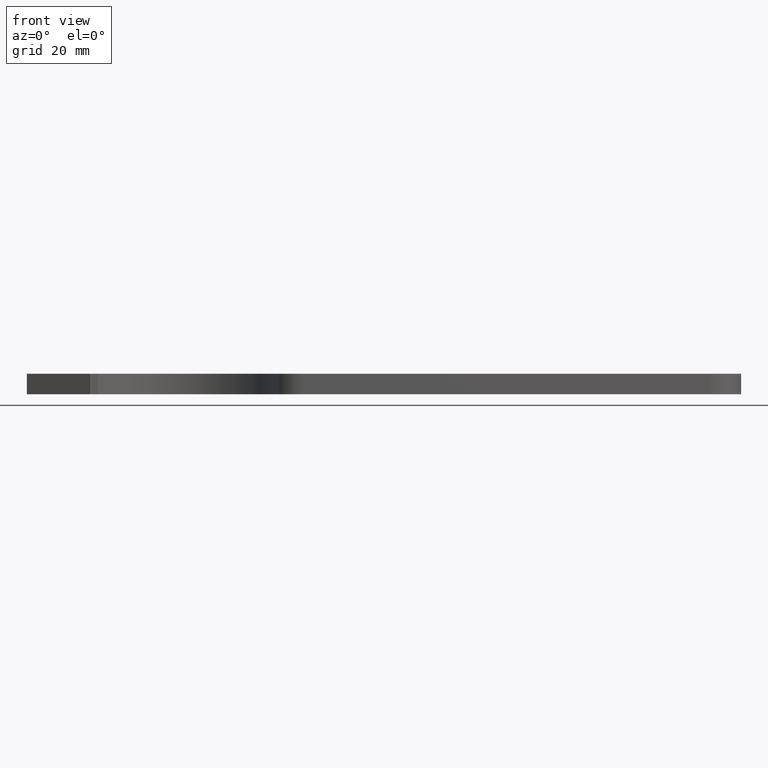
[diagram: clean part render]
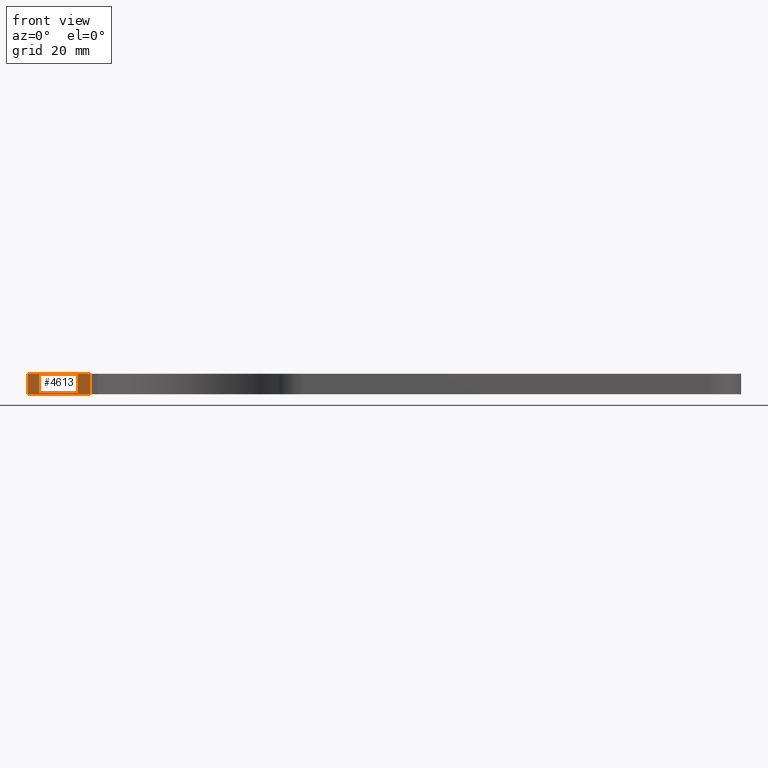
[diagram: same view with one face highlighted and labeled with its STEP entity id]
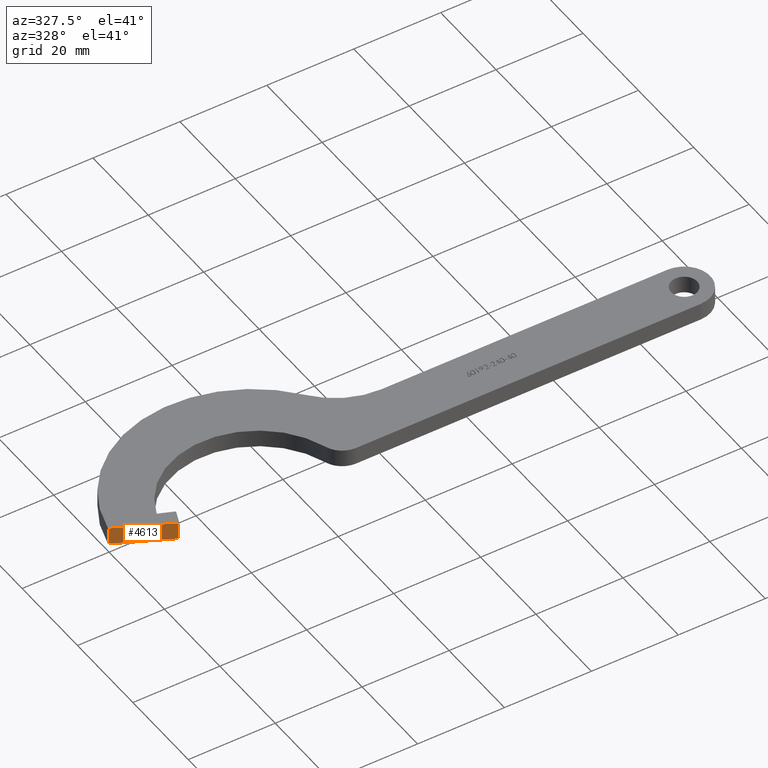
[diagram: same view with one face highlighted and labeled with its STEP entity id]
A machine part, front view. The second image highlights one B-rep face of the part: STEP entity #4613.
A second angle (auxiliary view) of the same face is appended — the face is thin or edge-on in the first view.
In plain terms, the highlighted planar face has unit normal (0.4384, 0.8988, -0).
Its self-contained STEP definition (entity closure, byte-faithful):
#342 = DIRECTION ( 'NONE',  ( 0.8987940462991024200, -0.4383711467892096900, -0.0000000000000000000 ) ) ;
#367 = CARTESIAN_POINT ( 'NONE',  ( 12.09727243372024600, -5.900233998687232500, 4.000000000000000000 ) ) ;
#831 = EDGE_CURVE ( 'NONE', #6622, #2778, #3787, .T. ) ;
#890 = LINE ( 'NONE', #8251, #5098 ) ;
#1744 = DIRECTION ( 'NONE',  ( -0.0000000000000000000, -0.0000000000000000000, -1.000000000000000000 ) ) ;
#1963 = DIRECTION ( 'NONE',  ( -0.8987940462991024200, 0.4383711467892096900, 0.0000000000000000000 ) ) ;
#2318 = LINE ( 'NONE', #5574, #6033 ) ;
#2532 = ORIENTED_EDGE ( 'NONE', *, *, #3773, .T. ) ;
#2552 = CARTESIAN_POINT ( 'NONE',  ( 12.09727243372024600, -5.900233998687233400, 4.000000000000000000 ) ) ;
#2553 = AXIS2_PLACEMENT_3D ( 'NONE', #3305, #7309, #1963 ) ;
#2626 = EDGE_CURVE ( 'NONE', #4968, #8282, #3975, .T. ) ;
#2778 = VERTEX_POINT ( 'NONE', #7630 ) ;
#3069 = DIRECTION ( 'NONE',  ( -0.0000000000000000000, -0.0000000000000000000, -1.000000000000000000 ) ) ;
#3203 = ORIENTED_EDGE ( 'NONE', *, *, #2626, .F. ) ;
#3277 = VECTOR ( 'NONE', #342, 1000.000000000000200 ) ;
#3305 = CARTESIAN_POINT ( 'NONE',  ( 12.09727243372024600, -5.900233998687233400, 4.000000000000000000 ) ) ;
#3687 = EDGE_CURVE ( 'NONE', #8282, #2778, #2318, .T. ) ;
#3773 = EDGE_CURVE ( 'NONE', #4968, #6622, #890, .T. ) ;
#3787 = LINE ( 'NONE', #4299, #3277 ) ;
#3916 = ORIENTED_EDGE ( 'NONE', *, *, #831, .T. ) ;
#3975 = LINE ( 'NONE', #2552, #5609 ) ;
#4058 = FACE_OUTER_BOUND ( 'NONE', #4450, .T. ) ;
#4299 = CARTESIAN_POINT ( 'NONE',  ( 12.09727243372024600, -5.900233998687233400, 0.0000000000000000000 ) ) ;
#4450 = EDGE_LOOP ( 'NONE', ( #3916, #7864, #3203, #2532 ) ) ;
#4613 = ADVANCED_FACE ( 'NONE', ( #4058 ), #7896, .F. ) ;
#4968 = VERTEX_POINT ( 'NONE', #5410 ) ;
#5098 = VECTOR ( 'NONE', #3069, 1000.000000000000000 ) ;
#5270 = DIRECTION ( 'NONE',  ( 0.8987940462991024200, -0.4383711467892096900, -0.0000000000000000000 ) ) ;
#5410 = CARTESIAN_POINT ( 'NONE',  ( -4.323256162785948300E-014, -1.930693018653562000E-013, 4.000000000000000000 ) ) ;
#5574 = CARTESIAN_POINT ( 'NONE',  ( 12.09727243372024600, -5.900233998687232500, 4.000000000000000000 ) ) ;
#5609 = VECTOR ( 'NONE', #5270, 1000.000000000000200 ) ;
#5610 = CARTESIAN_POINT ( 'NONE',  ( -4.323256162785948300E-014, -1.930693018653562000E-013, 0.0000000000000000000 ) ) ;
#6033 = VECTOR ( 'NONE', #1744, 1000.000000000000000 ) ;
#6622 = VERTEX_POINT ( 'NONE', #5610 ) ;
#7309 = DIRECTION ( 'NONE',  ( 0.4383711467892097400, 0.8987940462991025300, -0.0000000000000000000 ) ) ;
#7630 = CARTESIAN_POINT ( 'NONE',  ( 12.09727243372024600, -5.900233998687232500, 0.0000000000000000000 ) ) ;
#7864 = ORIENTED_EDGE ( 'NONE', *, *, #3687, .F. ) ;
#7896 = PLANE ( 'NONE',  #2553 ) ;
#8251 = CARTESIAN_POINT ( 'NONE',  ( -4.323256162785948300E-014, -1.930693018653562000E-013, 4.000000000000000000 ) ) ;
#8282 = VERTEX_POINT ( 'NONE', #367 ) ;